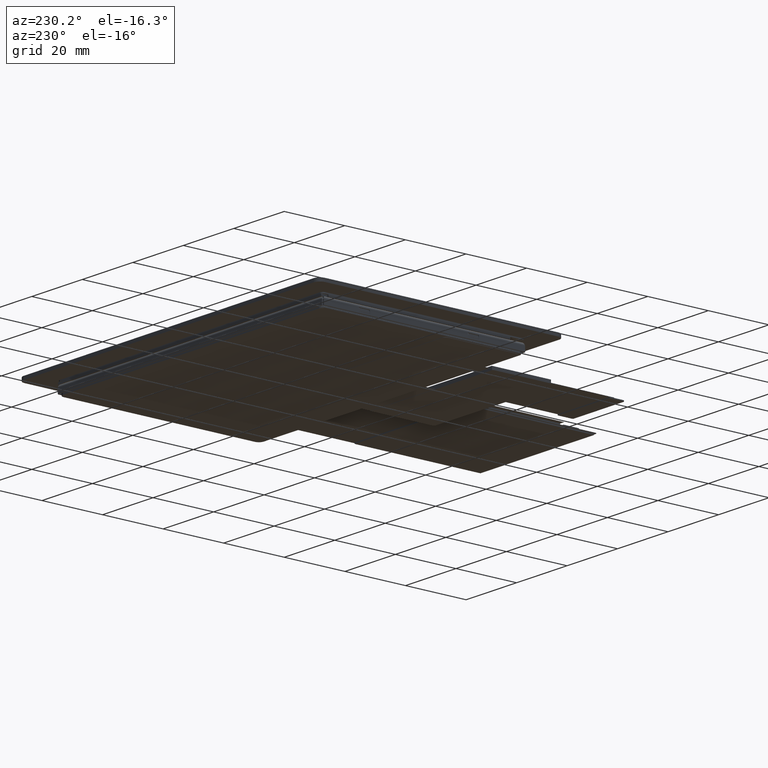
[diagram: clean part render]
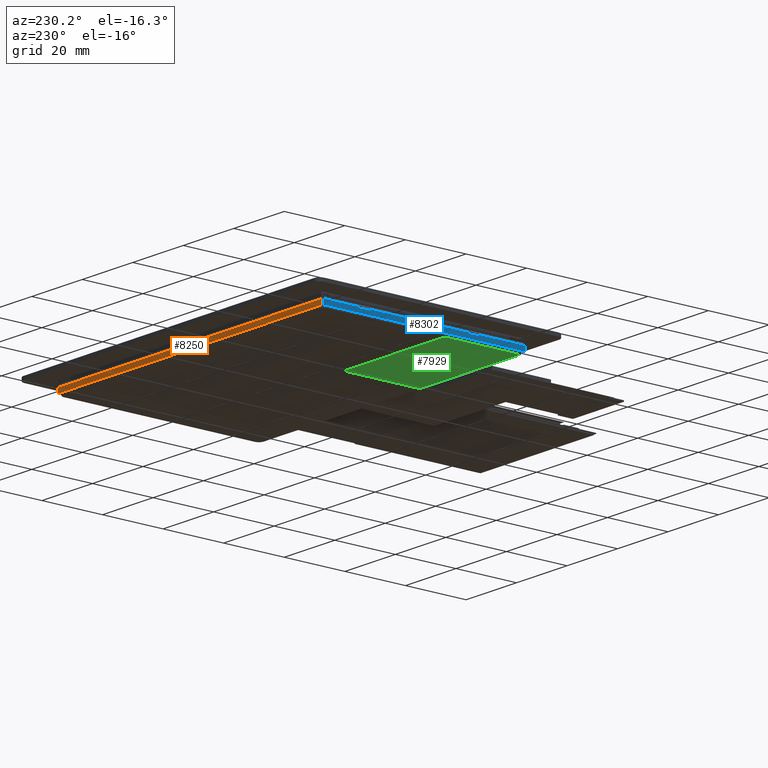
[diagram: same view with three faces highlighted in distinct colors, each labeled with its STEP entity id]
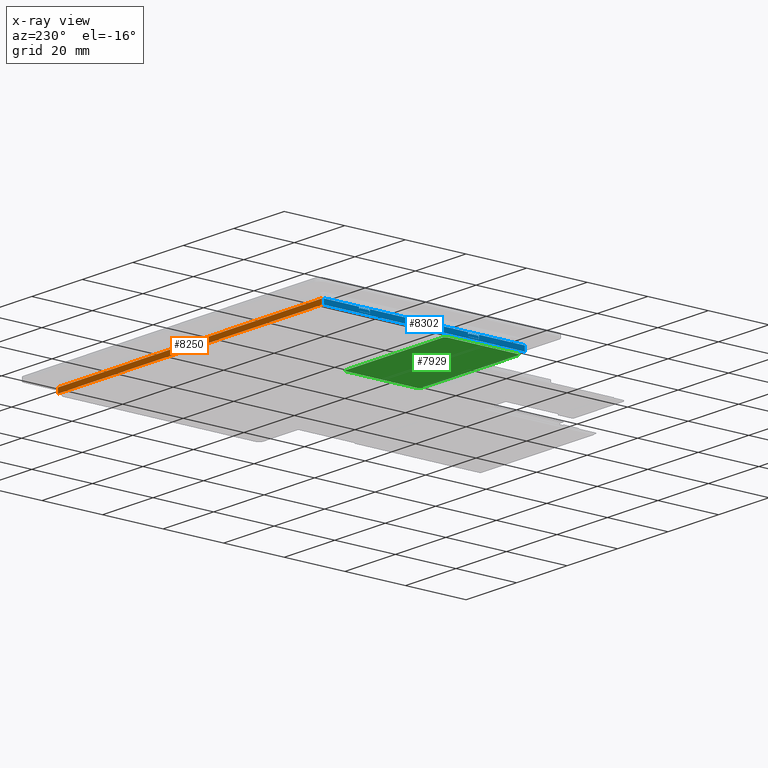
[diagram: x-ray of the same camera — body ghosted, the three highlighted faces saturated]
A machine part, auxiliary view with three faces highlighted in distinct colors.
The next image is the same camera in x-ray (body ghosted, the three faces saturated) — at least one of them is partly hidden behind the body in this view.
Their STEP definitions:

[orange] entity #8250 — the highlighted planar face has unit normal (-0, 1, 0).
#358=PLANE('',#8756);
#769=FACE_OUTER_BOUND('',#1207,.T.);
#1207=EDGE_LOOP('',(#7332,#7333,#7334,#7335));
#2195=LINE('',#13715,#3273);
#2196=LINE('',#13764,#3274);
#2197=LINE('',#13766,#3275);
#2198=LINE('',#13767,#3276);
#3273=VECTOR('',#10507,104.6);
#3274=VECTOR('',#10510,1.67);
#3275=VECTOR('',#10511,104.6);
#3276=VECTOR('',#10512,1.67);
#4197=VERTEX_POINT('',#13665);
#4198=VERTEX_POINT('',#13714);
#4199=VERTEX_POINT('',#13763);
#4200=VERTEX_POINT('',#13765);
#5287=EDGE_CURVE('',#4197,#4198,#2195,.T.);
#5289=EDGE_CURVE('',#4199,#4197,#2196,.T.);
#5290=EDGE_CURVE('',#4199,#4200,#2197,.T.);
#5291=EDGE_CURVE('',#4200,#4198,#2198,.T.);
#7332=ORIENTED_EDGE('',*,*,#5287,.F.);
#7333=ORIENTED_EDGE('',*,*,#5289,.F.);
#7334=ORIENTED_EDGE('',*,*,#5290,.T.);
#7335=ORIENTED_EDGE('',*,*,#5291,.T.);
#8250=ADVANCED_FACE('',(#769),#358,.T.);
#8756=AXIS2_PLACEMENT_3D('',#13762,#10508,#10509);
#10507=DIRECTION('',(-1.,-8.65815638633699E-16,0.));
#10508=DIRECTION('center_axis',(-8.65815638633699E-16,1.,0.));
#10509=DIRECTION('ref_axis',(-1.,-8.65815638633699E-16,0.));
#10510=DIRECTION('',(0.,0.,1.));
#10511=DIRECTION('',(-1.,-8.65815638633699E-16,0.));
#10512=DIRECTION('',(0.,0.,1.));
#13665=CARTESIAN_POINT('',(52.2999999999982,31.178000000001,-2.93999999999999));
#13714=CARTESIAN_POINT('',(-52.3000000000017,31.178000000001,-2.93999999999999));
#13715=CARTESIAN_POINT('',(52.2999999999982,31.178000000001,-2.93999999999999));
#13762=CARTESIAN_POINT('Origin',(52.6999999999984,31.178000000001,-4.60999999999999));
#13763=CARTESIAN_POINT('',(52.2999999999982,31.178000000001,-4.60999999999999));
#13764=CARTESIAN_POINT('',(52.2999999999982,31.178000000001,-4.60999999999999));
#13765=CARTESIAN_POINT('',(-52.3000000000017,31.178000000001,-4.60999999999999));
#13766=CARTESIAN_POINT('',(52.2999999999982,31.178000000001,-4.60999999999999));
#13767=CARTESIAN_POINT('',(-52.3000000000017,31.178000000001,-4.60999999999999));

[blue] entity #8302 — the highlighted planar face has unit normal (1, 0, 0).
#63=FACE_BOUND('',#1262,.T.);
#64=FACE_BOUND('',#1263,.T.);
#401=PLANE('',#8821);
#821=FACE_OUTER_BOUND('',#1261,.T.);
#1261=EDGE_LOOP('',(#7588,#7589,#7590,#7591));
#1262=EDGE_LOOP('',(#7592,#7593,#7594,#7595,#7596,#7597,#7598,#7599,#7600,
#7601));
#1263=EDGE_LOOP('',(#7602,#7603,#7604,#7605,#7606,#7607,#7608,#7609,#7610,
#7611));
#2140=LINE('',#13040,#3218);
#2150=LINE('',#13060,#3228);
#2151=LINE('',#13064,#3229);
#2152=LINE('',#13159,#3230);
#2203=LINE('',#13855,#3281);
#2205=LINE('',#13858,#3283);
#2220=LINE('',#13889,#3298);
#2225=LINE('',#13898,#3303);
#2229=LINE('',#13906,#3307);
#2234=LINE('',#13916,#3312);
#2239=LINE('',#13926,#3317);
#2244=LINE('',#13935,#3322);
#2248=LINE('',#13943,#3326);
#2253=LINE('',#13953,#3331);
#2278=LINE('',#14019,#3356);
#2281=LINE('',#14025,#3359);
#2289=LINE('',#14049,#3367);
#2291=LINE('',#14056,#3369);
#2294=LINE('',#14063,#3372);
#2297=LINE('',#14071,#3375);
#3218=VECTOR('',#10404,1.05);
#3228=VECTOR('',#10420,1.05);
#3229=VECTOR('',#10423,66.3);
#3230=VECTOR('',#10426,1.67);
#3281=VECTOR('',#10521,1.67);
#3283=VECTOR('',#10525,66.3);
#3298=VECTOR('',#10550,3.6);
#3303=VECTOR('',#10559,1.05);
#3307=VECTOR('',#10567,3.6);
#3312=VECTOR('',#10576,1.05);
#3317=VECTOR('',#10585,3.6);
#3322=VECTOR('',#10594,1.05);
#3326=VECTOR('',#10602,3.6);
#3331=VECTOR('',#10611,1.05);
#3356=VECTOR('',#10680,3.6);
#3359=VECTOR('',#10685,3.6);
#3367=VECTOR('',#10709,0.35);
#3369=VECTOR('',#10717,2.6);
#3372=VECTOR('',#10726,0.35);
#3375=VECTOR('',#10735,2.6);
#3552=CIRCLE('',#8811,0.5);
#3553=CIRCLE('',#8814,0.5);
#3554=CIRCLE('',#8817,0.5);
#3555=CIRCLE('',#8820,0.5);
#4162=VERTEX_POINT('',#13034);
#4164=VERTEX_POINT('',#13038);
#4169=VERTEX_POINT('',#13054);
#4171=VERTEX_POINT('',#13058);
#4172=VERTEX_POINT('',#13062);
#4173=VERTEX_POINT('',#13063);
#4174=VERTEX_POINT('',#13158);
#4201=VERTEX_POINT('',#13854);
#4212=VERTEX_POINT('',#13888);
#4214=VERTEX_POINT('',#13897);
#4216=VERTEX_POINT('',#13905);
#4218=VERTEX_POINT('',#13913);
#4222=VERTEX_POINT('',#13925);
#4224=VERTEX_POINT('',#13934);
#4226=VERTEX_POINT('',#13942);
#4228=VERTEX_POINT('',#13950);
#4248=VERTEX_POINT('',#14017);
#4250=VERTEX_POINT('',#14023);
#4258=VERTEX_POINT('',#14047);
#4259=VERTEX_POINT('',#14051);
#4260=VERTEX_POINT('',#14055);
#4261=VERTEX_POINT('',#14059);
#4262=VERTEX_POINT('',#14065);
#4263=VERTEX_POINT('',#14069);
#5221=EDGE_CURVE('',#4162,#4164,#2140,.T.);
#5231=EDGE_CURVE('',#4169,#4171,#2150,.T.);
#5232=EDGE_CURVE('',#4172,#4173,#2151,.T.);
#5235=EDGE_CURVE('',#4174,#4173,#2152,.T.);
#5296=EDGE_CURVE('',#4201,#4172,#2203,.T.);
#5298=EDGE_CURVE('',#4201,#4174,#2205,.T.);
#5313=EDGE_CURVE('',#4164,#4212,#2220,.T.);
#5318=EDGE_CURVE('',#4212,#4214,#2225,.T.);
#5322=EDGE_CURVE('',#4214,#4216,#2229,.T.);
#5327=EDGE_CURVE('',#4216,#4218,#2234,.T.);
#5332=EDGE_CURVE('',#4171,#4222,#2239,.T.);
#5337=EDGE_CURVE('',#4222,#4224,#2244,.T.);
#5341=EDGE_CURVE('',#4224,#4226,#2248,.T.);
#5346=EDGE_CURVE('',#4226,#4228,#2253,.T.);
#5378=EDGE_CURVE('',#4248,#4218,#2278,.T.);
#5381=EDGE_CURVE('',#4250,#4228,#2281,.T.);
#5393=EDGE_CURVE('',#4258,#4248,#2289,.T.);
#5394=EDGE_CURVE('',#4169,#4259,#3552,.T.);
#5396=EDGE_CURVE('',#4259,#4260,#2291,.T.);
#5398=EDGE_CURVE('',#4260,#4261,#3553,.T.);
#5400=EDGE_CURVE('',#4261,#4250,#2294,.T.);
#5402=EDGE_CURVE('',#4262,#4258,#3554,.T.);
#5404=EDGE_CURVE('',#4263,#4262,#2297,.T.);
#5405=EDGE_CURVE('',#4162,#4263,#3555,.T.);
#7588=ORIENTED_EDGE('',*,*,#5232,.F.);
#7589=ORIENTED_EDGE('',*,*,#5296,.F.);
#7590=ORIENTED_EDGE('',*,*,#5298,.T.);
#7591=ORIENTED_EDGE('',*,*,#5235,.T.);
#7592=ORIENTED_EDGE('',*,*,#5381,.F.);
#7593=ORIENTED_EDGE('',*,*,#5400,.F.);
#7594=ORIENTED_EDGE('',*,*,#5398,.F.);
#7595=ORIENTED_EDGE('',*,*,#5396,.F.);
#7596=ORIENTED_EDGE('',*,*,#5394,.F.);
#7597=ORIENTED_EDGE('',*,*,#5231,.T.);
#7598=ORIENTED_EDGE('',*,*,#5332,.T.);
#7599=ORIENTED_EDGE('',*,*,#5337,.T.);
#7600=ORIENTED_EDGE('',*,*,#5341,.T.);
#7601=ORIENTED_EDGE('',*,*,#5346,.T.);
#7602=ORIENTED_EDGE('',*,*,#5378,.F.);
#7603=ORIENTED_EDGE('',*,*,#5393,.F.);
#7604=ORIENTED_EDGE('',*,*,#5402,.F.);
#7605=ORIENTED_EDGE('',*,*,#5404,.F.);
#7606=ORIENTED_EDGE('',*,*,#5405,.F.);
#7607=ORIENTED_EDGE('',*,*,#5221,.T.);
#7608=ORIENTED_EDGE('',*,*,#5313,.T.);
#7609=ORIENTED_EDGE('',*,*,#5318,.T.);
#7610=ORIENTED_EDGE('',*,*,#5322,.T.);
#7611=ORIENTED_EDGE('',*,*,#5327,.T.);
#8302=ADVANCED_FACE('',(#821,#63,#64),#401,.F.);
#8811=AXIS2_PLACEMENT_3D('',#14052,#10712,#10713);
#8814=AXIS2_PLACEMENT_3D('',#14060,#10721,#10722);
#8817=AXIS2_PLACEMENT_3D('',#14067,#10730,#10731);
#8820=AXIS2_PLACEMENT_3D('',#14073,#10738,#10739);
#8821=AXIS2_PLACEMENT_3D('',#14074,#10740,#10741);
#10404=DIRECTION('',(0.,0.,1.));
#10420=DIRECTION('',(0.,0.,1.));
#10423=DIRECTION('',(8.65815638633699E-16,-1.,0.));
#10426=DIRECTION('',(0.,0.,1.));
#10521=DIRECTION('',(0.,0.,1.));
#10525=DIRECTION('',(8.65815638633699E-16,-1.,0.));
#10550=DIRECTION('',(8.65815638633699E-16,-1.,0.));
#10559=DIRECTION('',(0.,0.,-1.));
#10567=DIRECTION('',(-8.65815638633699E-16,1.,0.));
#10576=DIRECTION('',(0.,0.,1.));
#10585=DIRECTION('',(8.65815638633699E-16,-1.,0.));
#10594=DIRECTION('',(0.,0.,-1.));
#10602=DIRECTION('',(-8.65815638633699E-16,1.,0.));
#10611=DIRECTION('',(0.,0.,1.));
#10680=DIRECTION('',(-8.65815638633699E-16,1.,0.));
#10685=DIRECTION('',(-8.65815638633699E-16,1.,0.));
#10709=DIRECTION('',(0.,0.,-1.));
#10712=DIRECTION('center_axis',(1.,8.65815638633699E-16,0.));
#10713=DIRECTION('ref_axis',(-8.65815638633699E-16,1.,0.));
#10717=DIRECTION('',(8.65815638633699E-16,-1.,0.));
#10721=DIRECTION('center_axis',(1.,8.65815638633699E-16,0.));
#10722=DIRECTION('ref_axis',(0.,0.,1.));
#10726=DIRECTION('',(0.,0.,-1.));
#10730=DIRECTION('center_axis',(1.,8.65815638633699E-16,0.));
#10731=DIRECTION('ref_axis',(0.,0.,1.));
#10735=DIRECTION('',(8.65815638633699E-16,-1.,0.));
#10738=DIRECTION('center_axis',(1.,8.65815638633699E-16,0.));
#10739=DIRECTION('ref_axis',(-8.65815638633699E-16,1.,0.));
#10740=DIRECTION('center_axis',(1.,8.65815638633699E-16,0.));
#10741=DIRECTION('ref_axis',(0.,0.,-1.));
#13034=CARTESIAN_POINT('',(-52.7000000000017,19.238000000001,-3.52205505282299));
#13038=CARTESIAN_POINT('',(-52.7000000000017,19.238000000001,-3.07141009879098));
#13040=CARTESIAN_POINT('',(-52.7000000000017,19.238000000001,-4.12141009879099));
#13054=CARTESIAN_POINT('',(-52.7000000000015,-16.781999999999,-3.52205505282299));
#13058=CARTESIAN_POINT('',(-52.7000000000015,-16.781999999999,-3.07141009879098));
#13060=CARTESIAN_POINT('',(-52.7000000000015,-16.781999999999,-4.12141009879099));
#13062=CARTESIAN_POINT('',(-52.7000000000017,30.778000000001,-2.93999999999999));
#13063=CARTESIAN_POINT('',(-52.7000000000015,-35.521999999999,-2.93999999999999));
#13064=CARTESIAN_POINT('',(-52.7000000000017,30.778000000001,-2.93999999999999));
#13158=CARTESIAN_POINT('',(-52.7000000000015,-35.521999999999,-4.60999999999999));
#13159=CARTESIAN_POINT('',(-52.7000000000015,-35.521999999999,-4.60999999999999));
#13854=CARTESIAN_POINT('',(-52.7000000000017,30.778000000001,-4.60999999999999));
#13855=CARTESIAN_POINT('',(-52.7000000000017,30.778000000001,-4.60999999999999));
#13858=CARTESIAN_POINT('',(-52.7000000000017,30.778000000001,-4.60999999999999));
#13888=CARTESIAN_POINT('',(-52.7000000000017,15.638000000001,-3.07141009879098));
#13889=CARTESIAN_POINT('',(-52.7000000000017,19.238000000001,-3.07141009879098));
#13897=CARTESIAN_POINT('',(-52.7000000000017,15.638000000001,-4.12141009879099));
#13898=CARTESIAN_POINT('',(-52.7000000000017,15.638000000001,-3.07141009879098));
#13905=CARTESIAN_POINT('',(-52.7000000000017,19.238000000001,-4.12141009879099));
#13906=CARTESIAN_POINT('',(-52.7000000000017,15.638000000001,-4.12141009879099));
#13913=CARTESIAN_POINT('',(-52.7000000000017,19.238000000001,-4.08999999999999));
#13916=CARTESIAN_POINT('',(-52.7000000000017,19.238000000001,-4.12141009879099));
#13925=CARTESIAN_POINT('',(-52.7000000000015,-20.381999999999,-3.07141009879098));
#13926=CARTESIAN_POINT('',(-52.7000000000015,-16.781999999999,-3.07141009879098));
#13934=CARTESIAN_POINT('',(-52.7000000000015,-20.381999999999,-4.12141009879099));
#13935=CARTESIAN_POINT('',(-52.7000000000015,-20.381999999999,-3.07141009879098));
#13942=CARTESIAN_POINT('',(-52.7000000000015,-16.781999999999,-4.12141009879099));
#13943=CARTESIAN_POINT('',(-52.7000000000015,-20.381999999999,-4.12141009879099));
#13950=CARTESIAN_POINT('',(-52.7000000000015,-16.781999999999,-4.08999999999999));
#13953=CARTESIAN_POINT('',(-52.7000000000015,-16.781999999999,-4.12141009879099));
#14017=CARTESIAN_POINT('',(-52.7000000000018,15.688000000001,-4.08999999999999));
#14019=CARTESIAN_POINT('',(-52.7000000000018,15.688000000001,-4.08999999999999));
#14023=CARTESIAN_POINT('',(-52.7000000000017,-20.3319999999991,-4.08999999999999));
#14025=CARTESIAN_POINT('',(-52.7000000000017,-20.3319999999991,-4.08999999999999));
#14047=CARTESIAN_POINT('',(-52.7000000000018,15.688000000001,-3.73999999999999));
#14049=CARTESIAN_POINT('',(-52.7000000000018,15.688000000001,-3.73999999999999));
#14051=CARTESIAN_POINT('',(-52.7000000000017,-17.2319999999991,-3.23999999999999));
#14052=CARTESIAN_POINT('Origin',(-52.7000000000017,-17.2319999999991,-3.73999999999999));
#14055=CARTESIAN_POINT('',(-52.7000000000017,-19.8319999999991,-3.23999999999999));
#14056=CARTESIAN_POINT('',(-52.7000000000017,-17.2319999999991,-3.23999999999999));
#14059=CARTESIAN_POINT('',(-52.7000000000017,-20.3319999999991,-3.73999999999999));
#14060=CARTESIAN_POINT('Origin',(-52.7000000000017,-19.8319999999991,-3.73999999999999));
#14063=CARTESIAN_POINT('',(-52.7000000000017,-20.3319999999991,-3.73999999999999));
#14065=CARTESIAN_POINT('',(-52.7000000000018,16.1880000000009,-3.23999999999999));
#14067=CARTESIAN_POINT('Origin',(-52.7000000000018,16.1880000000009,-3.73999999999999));
#14069=CARTESIAN_POINT('',(-52.7000000000018,18.788000000001,-3.23999999999999));
#14071=CARTESIAN_POINT('',(-52.7000000000018,18.788000000001,-3.23999999999999));
#14073=CARTESIAN_POINT('Origin',(-52.7000000000018,18.788000000001,-3.73999999999999));
#14074=CARTESIAN_POINT('Origin',(-52.7000000000017,-2.32199999999906,-5.33999999999999));

[green] entity #7929 — the highlighted planar face has unit normal (0, 0, -1).
#74=PLANE('',#8381);
#448=FACE_OUTER_BOUND('',#873,.T.);
#873=EDGE_LOOP('',(#5518,#5519,#5520,#5521,#5522,#5523,#5524,#5525));
#1325=LINE('',#10967,#2403);
#1326=LINE('',#10971,#2404);
#1327=LINE('',#10975,#2405);
#1328=LINE('',#10978,#2406);
#2403=VECTOR('',#8889,10.);
#2404=VECTOR('',#8892,10.);
#2405=VECTOR('',#8895,10.);
#2406=VECTOR('',#8898,10.);
#3479=CIRCLE('',#8379,1.);
#3481=CIRCLE('',#8382,1.);
#3482=CIRCLE('',#8383,1.);
#3483=CIRCLE('',#8384,1.);
#3561=VERTEX_POINT('',#10957);
#3562=VERTEX_POINT('',#10958);
#3565=VERTEX_POINT('',#10966);
#3566=VERTEX_POINT('',#10968);
#3567=VERTEX_POINT('',#10970);
#3568=VERTEX_POINT('',#10972);
#3569=VERTEX_POINT('',#10974);
#3570=VERTEX_POINT('',#10976);
#4329=EDGE_CURVE('',#3561,#3562,#3479,.T.);
#4333=EDGE_CURVE('',#3565,#3561,#1325,.T.);
#4334=EDGE_CURVE('',#3566,#3565,#3481,.T.);
#4335=EDGE_CURVE('',#3567,#3566,#1326,.T.);
#4336=EDGE_CURVE('',#3568,#3567,#3482,.T.);
#4337=EDGE_CURVE('',#3569,#3568,#1327,.T.);
#4338=EDGE_CURVE('',#3570,#3569,#3483,.T.);
#4339=EDGE_CURVE('',#3562,#3570,#1328,.T.);
#5518=ORIENTED_EDGE('',*,*,#4329,.F.);
#5519=ORIENTED_EDGE('',*,*,#4333,.F.);
#5520=ORIENTED_EDGE('',*,*,#4334,.F.);
#5521=ORIENTED_EDGE('',*,*,#4335,.F.);
#5522=ORIENTED_EDGE('',*,*,#4336,.F.);
#5523=ORIENTED_EDGE('',*,*,#4337,.F.);
#5524=ORIENTED_EDGE('',*,*,#4338,.F.);
#5525=ORIENTED_EDGE('',*,*,#4339,.F.);
#7929=ADVANCED_FACE('',(#448),#74,.T.);
#8379=AXIS2_PLACEMENT_3D('',#10959,#8881,#8882);
#8381=AXIS2_PLACEMENT_3D('',#10965,#8887,#8888);
#8382=AXIS2_PLACEMENT_3D('',#10969,#8890,#8891);
#8383=AXIS2_PLACEMENT_3D('',#10973,#8893,#8894);
#8384=AXIS2_PLACEMENT_3D('',#10977,#8896,#8897);
#8881=DIRECTION('center_axis',(0.,0.,1.));
#8882=DIRECTION('ref_axis',(-0.707106781186547,-0.707106781186548,0.));
#8887=DIRECTION('center_axis',(0.,0.,-1.));
#8888=DIRECTION('ref_axis',(-1.,-8.65815638633699E-16,0.));
#8889=DIRECTION('',(1.22108700651375E-15,-1.,0.));
#8890=DIRECTION('center_axis',(0.,0.,1.));
#8891=DIRECTION('ref_axis',(-0.707106781186548,0.707106781186547,0.));
#8892=DIRECTION('',(-1.,-1.08786024355873E-15,0.));
#8893=DIRECTION('center_axis',(0.,0.,1.));
#8894=DIRECTION('ref_axis',(0.707106781186547,0.707106781186548,0.));
#8895=DIRECTION('',(-5.99362112723661E-16,1.,0.));
#8896=DIRECTION('center_axis',(0.,0.,1.));
#8897=DIRECTION('ref_axis',(0.70710678118655,-0.707106781186545,0.));
#8898=DIRECTION('',(1.,8.65815638633699E-16,0.));
#10957=CARTESIAN_POINT('',(-51.7000000000015,-33.9219999999991,-5.23999999999999));
#10958=CARTESIAN_POINT('',(-50.7000000000015,-34.9219999999991,-5.23999999999999));
#10959=CARTESIAN_POINT('Origin',(-50.7000000000015,-33.9219999999991,-5.23999999999999));
#10965=CARTESIAN_POINT('Origin',(-31.7000000000015,-22.4219999999991,-5.23999999999999));
#10966=CARTESIAN_POINT('',(-51.7000000000015,-10.9219999999991,-5.23999999999999));
#10967=CARTESIAN_POINT('',(-51.7000000000015,-9.9219999999991,-5.23999999999999));
#10968=CARTESIAN_POINT('',(-50.7000000000015,-9.9219999999991,-5.23999999999999));
#10969=CARTESIAN_POINT('Origin',(-50.7000000000015,-10.9219999999991,-5.23999999999999));
#10970=CARTESIAN_POINT('',(-12.7000000000015,-9.92199999999906,-5.23999999999999));
#10971=CARTESIAN_POINT('',(-11.7000000000015,-9.92199999999905,-5.23999999999999));
#10972=CARTESIAN_POINT('',(-11.7000000000015,-10.9219999999991,-5.23999999999999));
#10973=CARTESIAN_POINT('Origin',(-12.7000000000015,-10.9219999999991,-5.23999999999999));
#10974=CARTESIAN_POINT('',(-11.7000000000015,-33.9219999999991,-5.23999999999999));
#10975=CARTESIAN_POINT('',(-11.7000000000015,-34.9219999999991,-5.23999999999999));
#10976=CARTESIAN_POINT('',(-12.7000000000015,-34.9219999999991,-5.23999999999999));
#10977=CARTESIAN_POINT('Origin',(-12.7000000000015,-33.9219999999991,-5.23999999999999));
#10978=CARTESIAN_POINT('',(-51.7000000000015,-34.9219999999991,-5.23999999999999));